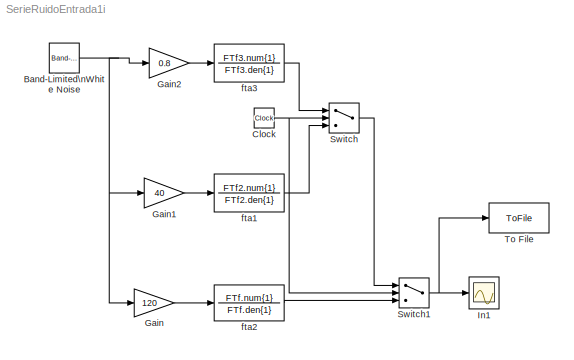
MODEL SerieRuidoEntrada1i
KIND model
BLOCK [Reference] Band-Limited\nWhite Noise  REF=simulink/Sources/Band-Limited\nWhite Noise
  Cov = [3.163*10^-5]
  FunctionWithSeparateData = off
  Ports = [0, 1]
  RTWMemSecDataConstants = Inherit from model
  RTWMemSecDataInternal = Inherit from model
  RTWMemSecDataParameters = Inherit from model
  RTWMemSecFuncExecute = Inherit from model
  RTWMemSecFuncInitTerm = Inherit from model
  ShowPortLabels = FromPortIcon
  SourceBlock = simulink/Sources/Band-Limited\nWhite Noise
  SourceType = Band-Limited White Noise.
  SystemSampleTime = -1
  Ts = 10^-3
  VectorParams1D = on
  seed = [23341]
BLOCK [Clock] Clock
  Decimation = 10
BLOCK [Gain] Gain
  Gain = 120
  OutDataType = fixdt(1, 16)
  OutDataTypeMode = Inherit via internal rule
  OutDataTypeStr = Inherit: Inherit via internal rule
  OutScaling = 2^0
  ParamDataTypeStr = Inherit: Inherit via internal rule
  ParameterDataType = fixdt(1, 16)
  ParameterDataTypeMode = Inherit via internal rule
  ParameterScaling = 2^0
  SaturateOnIntegerOverflow = off
BLOCK [Gain] Gain1
  Gain = 40
  OutDataType = fixdt(1, 16)
  OutDataTypeMode = Inherit via internal rule
  OutDataTypeStr = Inherit: Inherit via internal rule
  OutScaling = 2^0
  ParamDataTypeStr = Inherit: Inherit via internal rule
  ParameterDataType = fixdt(1, 16)
  ParameterDataTypeMode = Inherit via internal rule
  ParameterScaling = 2^0
  SaturateOnIntegerOverflow = off
BLOCK [Gain] Gain2
  Gain = 0.8
  OutDataType = fixdt(1, 16)
  OutDataTypeMode = Inherit via internal rule
  OutDataTypeStr = Inherit: Inherit via internal rule
  OutScaling = 2^0
  ParamDataTypeStr = Inherit: Inherit via internal rule
  ParameterDataType = fixdt(1, 16)
  ParameterDataTypeMode = Inherit via internal rule
  ParameterScaling = 2^0
  SaturateOnIntegerOverflow = off
BLOCK [Scope] In1
  DataFormat = StructureWithTime
  Floating = off
  LimitDataPoints = off
  NumInputPorts = 1
  Ports = [1]
  SampleTime = 0
  SaveName = Rand3and
  SaveToWorkspace = on
BLOCK [Switch] Switch
  InputSameDT = off
  OutDataType = fixdt(1, 16)
  OutScaling = 2^0
  SaturateOnIntegerOverflow = off
  Threshold = 10
BLOCK [Switch] Switch1
  InputSameDT = off
  OutDataType = fixdt(1, 16)
  OutScaling = 2^0
  SaturateOnIntegerOverflow = off
  Threshold = 5
BLOCK [ToFile] To File
  Filename = Ruidoi.mat
  MatrixName = Ruido
BLOCK [TransferFcn] fta1
  Denominator = FTf2.den{1}
  Numerator = FTf2.num{1}
BLOCK [TransferFcn] fta2
  Denominator = FTf.den{1}
  Numerator = FTf.num{1}
BLOCK [TransferFcn] fta3
  Denominator = FTf3.den{1}
  Numerator = FTf3.num{1}
NET Band-Limited\nWhite Noise:1 -> Gain1:1, Gain2:1, Gain:1
NET Clock:1 -> Switch1:2, Switch:2
LINE Gain1:1 -> fta1:1
LINE Gain2:1 -> fta3:1
LINE Gain:1 -> fta2:1
NET Switch1:1 -> In1:1, To File:1
LINE Switch:1 -> Switch1:1
LINE fta1:1 -> Switch:3
LINE fta2:1 -> Switch1:3
LINE fta3:1 -> Switch:1
note: NET lines group one-source signal fan-out (src -> all destinations, sorted); 1:1 wires keep LINE
